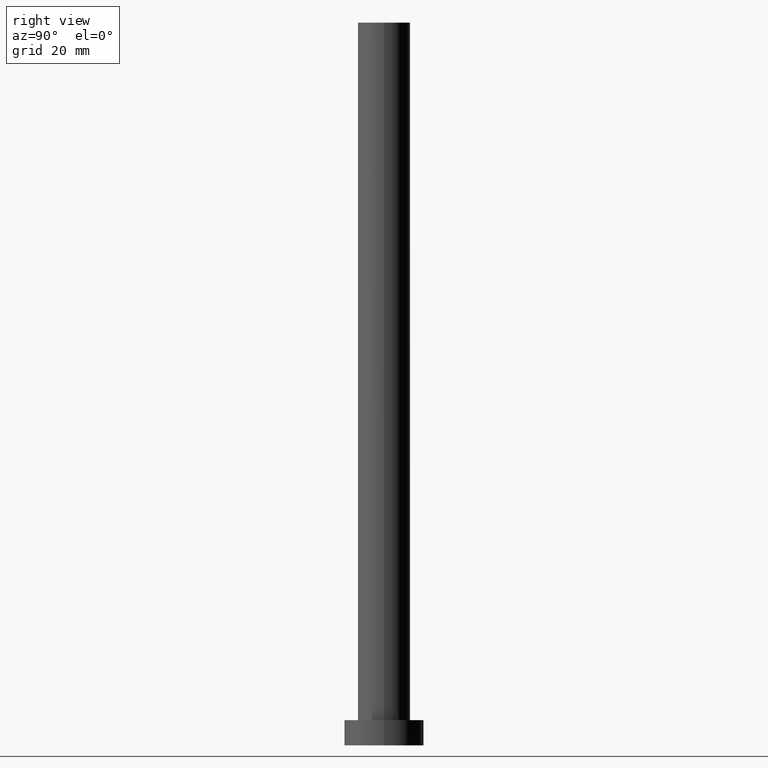
[diagram: clean part render]
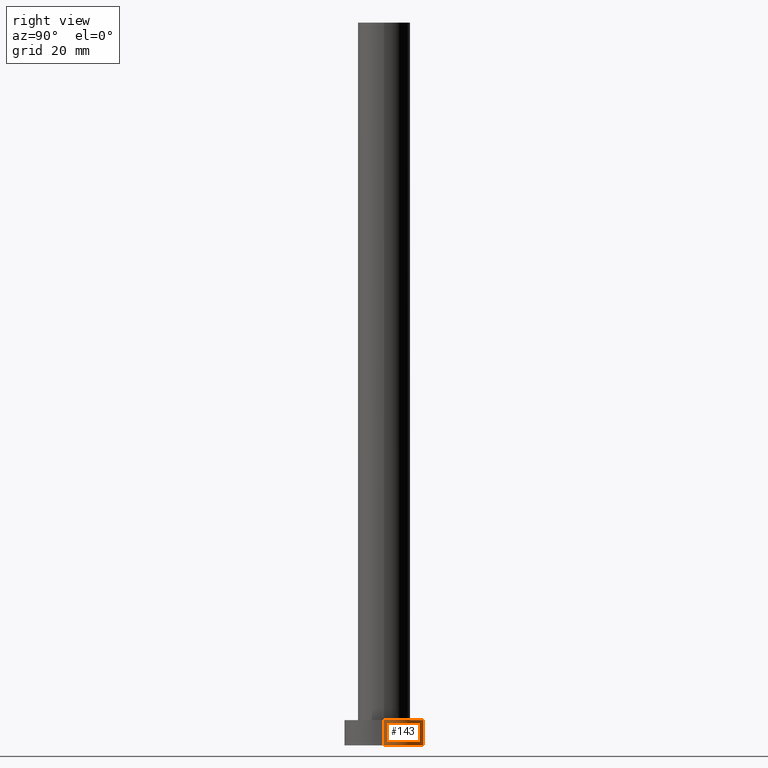
[diagram: same view with one face highlighted and labeled with its STEP entity id]
A machine part, right view. The second image highlights one B-rep face of the part: STEP entity #143.
In plain terms, the highlighted cylindrical surface (partial cylindrical patch) has radius 11 mm, axis along (-0, -0, -1).
Its self-contained STEP definition (entity closure, byte-faithful):
#11 = DIRECTION ( 'NONE',  ( -0.000000000000000000, -0.000000000000000000, -1.000000000000000000 ) ) ;
#12 = EDGE_LOOP ( 'NONE', ( #35, #184, #30, #108 ) ) ;
#18 = VERTEX_POINT ( 'NONE', #89 ) ;
#23 = DIRECTION ( 'NONE',  ( -0.000000000000000000, -0.000000000000000000, -1.000000000000000000 ) ) ;
#26 = FACE_OUTER_BOUND ( 'NONE', #12, .T. ) ;
#30 = ORIENTED_EDGE ( 'NONE', *, *, #167, .T. ) ;
#32 = AXIS2_PLACEMENT_3D ( 'NONE', #88, #73, #152 ) ;
#35 = ORIENTED_EDGE ( 'NONE', *, *, #48, .F. ) ;
#48 = EDGE_CURVE ( 'NONE', #210, #18, #182, .T. ) ;
#56 = LINE ( 'NONE', #86, #186 ) ;
#62 = EDGE_CURVE ( 'NONE', #18, #222, #56, .T. ) ;
#73 = DIRECTION ( 'NONE',  ( 0.000000000000000000, 0.000000000000000000, 1.000000000000000000 ) ) ;
#76 = CARTESIAN_POINT ( 'NONE',  ( 0.000000000000000000, 0.000000000000000000, 7.000000000000000000 ) ) ;
#86 = CARTESIAN_POINT ( 'NONE',  ( -11.00000000000000000, 0.000000000000000000, 7.000000000000000000 ) ) ;
#88 = CARTESIAN_POINT ( 'NONE',  ( 0.000000000000000000, 0.000000000000000000, 0.000000000000000000 ) ) ;
#89 = CARTESIAN_POINT ( 'NONE',  ( -11.00000000000000000, 0.000000000000000000, 7.000000000000000000 ) ) ;
#90 = LINE ( 'NONE', #169, #102 ) ;
#92 = DIRECTION ( 'NONE',  ( -1.000000000000000000, 0.000000000000000000, 0.000000000000000000 ) ) ;
#94 = DIRECTION ( 'NONE',  ( 1.000000000000000000, 0.000000000000000000, 0.000000000000000000 ) ) ;
#101 = VERTEX_POINT ( 'NONE', #127 ) ;
#102 = VECTOR ( 'NONE', #23, 1000.000000000000000 ) ;
#108 = ORIENTED_EDGE ( 'NONE', *, *, #62, .F. ) ;
#114 = CYLINDRICAL_SURFACE ( 'NONE', #213, 11.00000000000000000 ) ;
#127 = CARTESIAN_POINT ( 'NONE',  ( 11.00000000000000000, 1.347111479062088405E-15, 0.000000000000000000 ) ) ;
#139 = DIRECTION ( 'NONE',  ( -0.000000000000000000, -0.000000000000000000, -1.000000000000000000 ) ) ;
#143 = ADVANCED_FACE ( 'NONE', ( #26 ), #114, .T. ) ;
#152 = DIRECTION ( 'NONE',  ( 1.000000000000000000, 0.000000000000000000, 0.000000000000000000 ) ) ;
#167 = EDGE_CURVE ( 'NONE', #101, #222, #231, .T. ) ;
#169 = CARTESIAN_POINT ( 'NONE',  ( 11.00000000000000000, 1.347111479062088405E-15, 7.000000000000000000 ) ) ;
#175 = DIRECTION ( 'NONE',  ( 0.000000000000000000, 0.000000000000000000, 1.000000000000000000 ) ) ;
#182 = CIRCLE ( 'NONE', #197, 11.00000000000000000 ) ;
#184 = ORIENTED_EDGE ( 'NONE', *, *, #228, .T. ) ;
#186 = VECTOR ( 'NONE', #11, 1000.000000000000000 ) ;
#189 = CARTESIAN_POINT ( 'NONE',  ( 0.000000000000000000, 0.000000000000000000, 7.000000000000000000 ) ) ;
#197 = AXIS2_PLACEMENT_3D ( 'NONE', #76, #175, #94 ) ;
#210 = VERTEX_POINT ( 'NONE', #217 ) ;
#213 = AXIS2_PLACEMENT_3D ( 'NONE', #189, #139, #92 ) ;
#217 = CARTESIAN_POINT ( 'NONE',  ( 11.00000000000000000, 1.347111479062088405E-15, 7.000000000000000000 ) ) ;
#222 = VERTEX_POINT ( 'NONE', #229 ) ;
#228 = EDGE_CURVE ( 'NONE', #210, #101, #90, .T. ) ;
#229 = CARTESIAN_POINT ( 'NONE',  ( -11.00000000000000000, 0.000000000000000000, 0.000000000000000000 ) ) ;
#231 = CIRCLE ( 'NONE', #32, 11.00000000000000000 ) ;